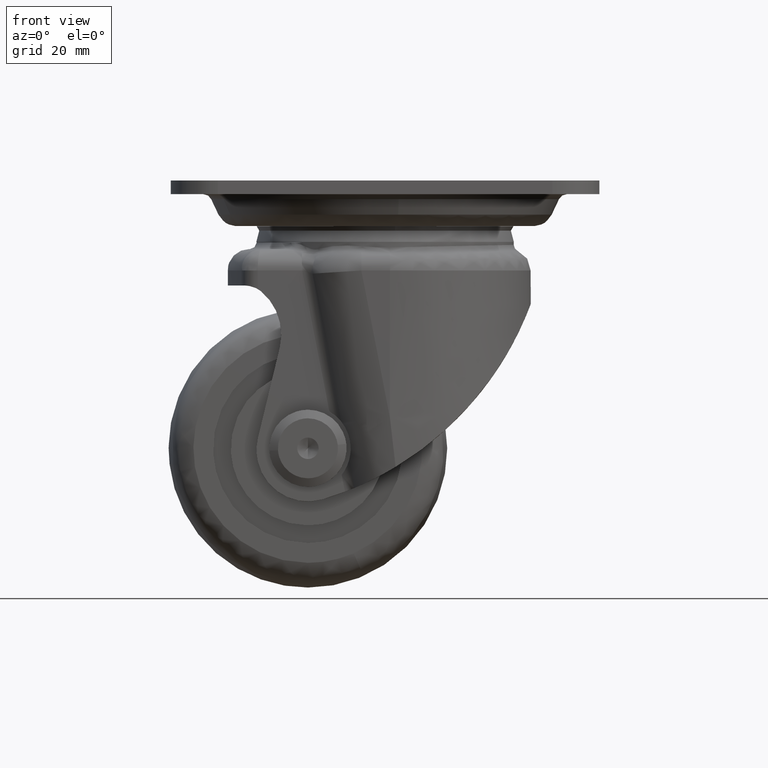
[diagram: clean part render]
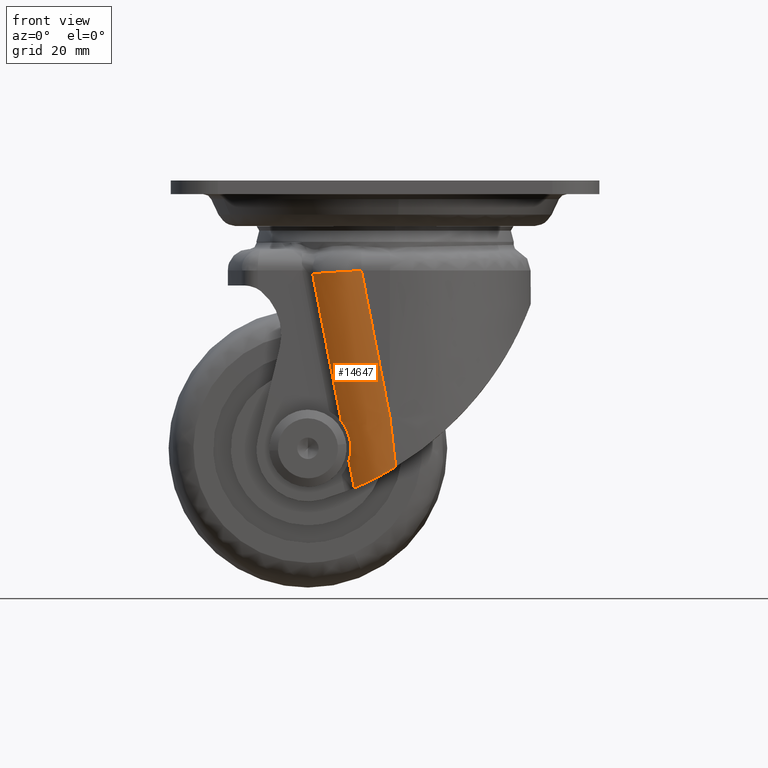
[diagram: same view with one face highlighted and labeled with its STEP entity id]
A machine part, front view. The second image highlights one B-rep face of the part: STEP entity #14647.
In plain terms, the highlighted face is a freeform B-spline surface patch.
Its self-contained STEP definition (entity closure, byte-faithful):
#11417=CARTESIAN_POINT('',(1.126497264450048,-32.873505000000037,-24.828917564355251));
#11418=VERTEX_POINT('',#11417);
#11538=CARTESIAN_POINT('',(-10.181566704598600,-27.578856664413451,-23.377328687122500));
#11539=VERTEX_POINT('',#11538);
#11553=CARTESIAN_POINT('',(1.126497264450048,-32.873505000000037,-24.828917564355251));
#11554=CARTESIAN_POINT('',(-5.767061446089429,-32.873505384350722,-23.944008071749472));
#11555=CARTESIAN_POINT('',(-10.181566704598600,-27.578856664413451,-23.377328687122500));
#11563=(BOUNDED_CURVE()B_SPLINE_CURVE(2,(#11553,#11554,#11555),.UNSPECIFIED.,.F.,.U.)CURVE()GEOMETRIC_REPRESENTATION_ITEM()QUASI_UNIFORM_CURVE()RATIONAL_B_SPLINE_CURVE((1.0,0.905643712791954,1.0))REPRESENTATION_ITEM(''));
#11564=EDGE_CURVE('',#11418,#11539,#11563,.T.);
#12420=CARTESIAN_POINT('',(-10.181566704598600,-27.578856664413451,-67.834935227793011));
#12421=VERTEX_POINT('',#12420);
#12422=CARTESIAN_POINT('',(-10.181566704598900,-27.578856664414701,-58.507808569695499));
#12423=VERTEX_POINT('',#12422);
#12424=CARTESIAN_POINT('',(-10.181566704598600,-27.578856664413451,-67.834935227793011));
#12425=CARTESIAN_POINT('',(-10.095878469284781,-27.681629020285168,-67.672399530106176));
#12426=CARTESIAN_POINT('',(-10.012755211298339,-27.778477994326131,-67.503886277009357));
#12427=CARTESIAN_POINT('',(-9.892861820716679,-27.914907430167879,-67.241625290053918));
#12428=CARTESIAN_POINT('',(-9.853862503395392,-27.958718937374940,-67.152972313474208));
#12429=CARTESIAN_POINT('',(-9.778263754731860,-28.042701822422728,-66.974053870858285));
#12430=CARTESIAN_POINT('',(-9.741604675027574,-28.082941139713061,-66.883658786248461));
#12431=CARTESIAN_POINT('',(-9.564223586625307,-28.275651813250342,-66.427028194568038));
#12432=CARTESIAN_POINT('',(-9.441204742621444,-28.402850734096539,-66.046900856192948));
#12433=CARTESIAN_POINT('',(-9.289429179043131,-28.556267271122191,-65.454106095848843));
#12434=CARTESIAN_POINT('',(-9.244303264400228,-28.601139816385409,-65.252726417586544));
#12435=CARTESIAN_POINT('',(-9.185486725227019,-28.659072581710831,-64.944781700513076));
#12436=CARTESIAN_POINT('',(-9.167405786947386,-28.676773841147291,-64.841338068651837));
#12437=CARTESIAN_POINT('',(-9.134605494514075,-28.708750572393271,-64.634546811277843));
#12438=CARTESIAN_POINT('',(-9.119839323651684,-28.723072180360461,-64.530961214471773));
#12439=CARTESIAN_POINT('',(-9.054159536706214,-28.786567801630959,-64.012097033006910));
#12440=CARTESIAN_POINT('',(-9.027604788511026,-28.811671824359770,-63.594030515059892));
#12441=CARTESIAN_POINT('',(-9.027502168403021,-28.811769562933250,-62.962479927563749));
#12442=CARTESIAN_POINT('',(-9.034107968885596,-28.805490331797611,-62.751217234383233));
#12443=CARTESIAN_POINT('',(-9.060970719226820,-28.779809035510389,-62.327150202627557));
#12444=CARTESIAN_POINT('',(-9.081051713188435,-28.760573360223439,-62.117256697484208));
#12445=CARTESIAN_POINT('',(-9.160178453489706,-28.684067490699238,-61.495035507521990));
#12446=CARTESIAN_POINT('',(-9.238089130163830,-28.608150453029381,-61.089559816279262));
#12447=CARTESIAN_POINT('',(-9.364751337721215,-28.480133683775961,-60.594350576994053));
#12448=CARTESIAN_POINT('',(-9.391551910777814,-28.452859399379030,-60.495894103132379));
#12449=CARTESIAN_POINT('',(-9.448050516180848,-28.394859408079640,-60.300165062704373));
#12450=CARTESIAN_POINT('',(-9.477818380958608,-28.364060594730422,-60.202679632015311));
#12451=CARTESIAN_POINT('',(-9.570889210198901,-28.266837235367579,-59.913641557106473));
#12452=CARTESIAN_POINT('',(-9.637709302620431,-28.195855291591190,-59.726158297874818));
#12453=CARTESIAN_POINT('',(-9.850825484414433,-27.964199106853869,-59.178707805426697));
#12454=CARTESIAN_POINT('',(-10.009765328288699,-27.784910997549922,-58.833685937339418));
#12455=CARTESIAN_POINT('',(-10.181566704598909,-27.578856664414701,-58.507808569695499));
#12456=B_SPLINE_CURVE_WITH_KNOTS('',3,(#12424,#12425,#12426,#12427,#12428,#12429,#12430,#12431,#12432,#12433,#12434,#12435,#12436,#12437,#12438,#12439,#12440,#12441,#12442,#12443,#12444,#12445,#12446,#12447,#12448,#12449,#12450,#12451,#12452,#12453,#12454,#12455),.UNSPECIFIED.,.F.,.U.,(4,2,2,2,2,2,2,2,2,2,2,2,2,2,2,4),(0.0,0.062500000000001,0.093750000000001,0.125000000000001,0.250000000000010,0.312500000000015,0.343750000000016,0.375000000000016,0.500000000000010,0.562500000000004,0.625000000000001,0.749999999999997,0.781249999999996,0.812499999999995,0.874999999999996,1.0),.UNSPECIFIED.);
#12457=EDGE_CURVE('',#12421,#12423,#12456,.T.);
#12541=CARTESIAN_POINT('',(1.126497264451492,-32.873505000000087,-59.726827333279402));
#12542=VERTEX_POINT('',#12541);
#12548=CARTESIAN_POINT('',(0.232830167416978,-32.846357652392051,-71.324590027310293));
#12549=VERTEX_POINT('',#12548);
#12550=CARTESIAN_POINT('',(1.126497264451492,-32.873505000000087,-59.726827333279402));
#12551=CARTESIAN_POINT('',(0.828561890680864,-32.873505000000058,-63.592754842909827));
#12552=CARTESIAN_POINT('',(0.530625913141543,-32.864466929447929,-67.458689436330218));
#12553=CARTESIAN_POINT('',(0.232830167416903,-32.846357652392037,-71.324590027310293));
#12554=QUASI_UNIFORM_CURVE('',3,(#12550,#12551,#12552,#12553),.UNSPECIFIED.,.F.,.U.);
#12555=EDGE_CURVE('',#12542,#12549,#12554,.T.);
#13075=CARTESIAN_POINT('',(-10.181566704599421,-27.578856664414101,-74.303561666217604));
#13076=VERTEX_POINT('',#13075);
#13077=CARTESIAN_POINT('',(-10.181566704599421,-27.578856664414101,-74.303561666217604));
#13078=CARTESIAN_POINT('',(-9.851037112674362,-27.975285704206019,-74.234379869411626));
#13079=CARTESIAN_POINT('',(-9.503330936508398,-28.350052385319270,-74.159275528325082));
#13080=CARTESIAN_POINT('',(-8.775425824399001,-29.058117680902100,-73.996084503044997));
#13081=CARTESIAN_POINT('',(-8.395220781606049,-29.391409465701571,-73.907998881167472));
#13082=CARTESIAN_POINT('',(-7.603116055095361,-30.017053378531280,-73.717383438205545));
#13083=CARTESIAN_POINT('',(-7.191215542689001,-30.309405313501319,-73.614856426792599));
#13084=CARTESIAN_POINT('',(-6.549489083674553,-30.716725946941260,-73.448850767459490));
#13085=CARTESIAN_POINT('',(-6.331177632265849,-30.847484774188789,-73.391359208454077));
#13086=CARTESIAN_POINT('',(-5.891568783645475,-31.095658049858571,-73.273411860340246));
#13087=CARTESIAN_POINT('',(-5.669737030207993,-31.213440401900609,-73.212821718910789));
#13088=CARTESIAN_POINT('',(-4.998392883233848,-31.548357999503061,-73.026063900263424));
#13089=CARTESIAN_POINT('',(-4.543047199289806,-31.747106678045640,-72.894913743482348));
#13090=CARTESIAN_POINT('',(-3.617619517868861,-32.096999448438780,-72.618476521870136));
#13091=CARTESIAN_POINT('',(-3.147535885927589,-32.248140397971277,-72.473190756159966));
#13092=CARTESIAN_POINT('',(-2.550935203875251,-32.407377672105753,-72.282111677718575));
#13093=CARTESIAN_POINT('',(-2.431164128605089,-32.437737473713838,-72.243421784234485));
#13094=CARTESIAN_POINT('',(-2.190720969167179,-32.495470531206742,-72.165075836598049));
#13095=CARTESIAN_POINT('',(-2.069941067375603,-32.522866464586599,-72.125383969525075));
#13096=CARTESIAN_POINT('',(-1.707017326109828,-32.600387478912317,-72.005086050241033));
#13097=CARTESIAN_POINT('',(-1.464891542972800,-32.645733227872022,-71.923459932053163));
#13098=CARTESIAN_POINT('',(-0.738046062984854,-32.763209420260807,-71.674260103767836));
#13099=CARTESIAN_POINT('',(-0.252862313296284,-32.816822174389181,-71.502366617351697));
#13100=CARTESIAN_POINT('',(0.232830167416973,-32.846357652392051,-71.324590027310293));
#13101=B_SPLINE_CURVE_WITH_KNOTS('',3,(#13077,#13078,#13079,#13080,#13081,#13082,#13083,#13084,#13085,#13086,#13087,#13088,#13089,#13090,#13091,#13092,#13093,#13094,#13095,#13096,#13097,#13098,#13099,#13100),.UNSPECIFIED.,.F.,.U.,(4,2,2,2,2,2,2,2,2,2,2,4),(0.0,0.125000000000001,0.250000000000002,0.375000000000003,0.437500000000003,0.500000000000003,0.625000000000004,0.750000000000006,0.781250000000005,0.812500000000005,0.875000000000004,1.0),.UNSPECIFIED.);
#13102=EDGE_CURVE('',#13076,#12549,#13101,.T.);
#14612=CARTESIAN_POINT('',(-10.568239501775329,-27.094732330202888,-22.104172862645118));
#14613=CARTESIAN_POINT('',(-10.568239501775329,-27.094732330202888,-75.608546386306912));
#14614=CARTESIAN_POINT('',(-5.911152706373886,-33.183995244708449,-22.104172862645125));
#14615=CARTESIAN_POINT('',(-5.911152706373886,-33.183995244708449,-75.608546386306941));
#14616=CARTESIAN_POINT('',(1.748015256328453,-32.860380688501017,-22.104172862645118));
#14617=CARTESIAN_POINT('',(1.748015256328453,-32.860380688501017,-75.608546386306912));
#14625=(BOUNDED_SURFACE()B_SPLINE_SURFACE(1,2,((#14612,#14614,#14616),(#14613,#14615,#14617)),.UNSPECIFIED.,.F.,.F.,.U.)B_SPLINE_SURFACE_WITH_KNOTS((2,2),(3,3),(0.0,53.504373523661783),(0.0,14.413586209569880),.UNSPECIFIED.)GEOMETRIC_REPRESENTATION_ITEM()RATIONAL_B_SPLINE_SURFACE(((0.999615048376983,0.885090163534431,0.996152943368221),(0.999615048376983,0.885090163534431,0.996152943368221)))REPRESENTATION_ITEM('')SURFACE());
#14626=CARTESIAN_POINT('',(1.126497264450048,-32.873505000000037,-24.828917564355251));
#14627=CARTESIAN_POINT('',(1.126497264451492,-32.873505000000087,-59.726827333279402));
#14628=QUASI_UNIFORM_CURVE('',1,(#14626,#14627),.UNSPECIFIED.,.F.,.U.);
#14629=EDGE_CURVE('',#11418,#12542,#14628,.T.);
#14630=ORIENTED_EDGE('',*,*,#14629,.F.);
#14631=ORIENTED_EDGE('',*,*,#11564,.T.);
#14632=CARTESIAN_POINT('',(-10.181566704598600,-27.578856664413451,-23.377328687122500));
#14633=CARTESIAN_POINT('',(-10.181566704598900,-27.578856664414701,-58.507808569695499));
#14634=QUASI_UNIFORM_CURVE('',1,(#14632,#14633),.UNSPECIFIED.,.F.,.U.);
#14635=EDGE_CURVE('',#11539,#12423,#14634,.T.);
#14636=ORIENTED_EDGE('',*,*,#14635,.T.);
#14637=ORIENTED_EDGE('',*,*,#12457,.F.);
#14638=CARTESIAN_POINT('',(-10.181566704598600,-27.578856664413451,-67.834935227793011));
#14639=CARTESIAN_POINT('',(-10.181566704599421,-27.578856664414101,-74.303561666217604));
#14640=QUASI_UNIFORM_CURVE('',1,(#14638,#14639),.UNSPECIFIED.,.F.,.U.);
#14641=EDGE_CURVE('',#12421,#13076,#14640,.T.);
#14642=ORIENTED_EDGE('',*,*,#14641,.T.);
#14643=ORIENTED_EDGE('',*,*,#13102,.T.);
#14644=ORIENTED_EDGE('',*,*,#12555,.F.);
#14645=EDGE_LOOP('',(#14630,#14631,#14636,#14637,#14642,#14643,#14644));
#14646=FACE_OUTER_BOUND('',#14645,.T.);
#14647=ADVANCED_FACE('',(#14646),#14625,.T.);